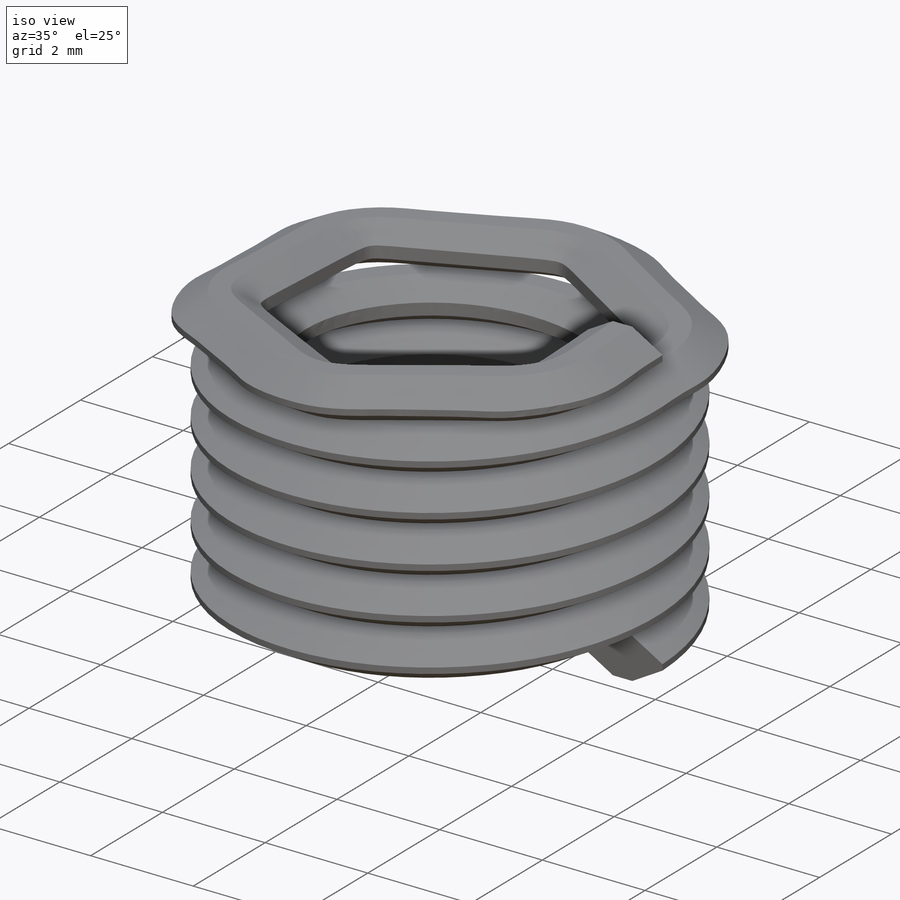
[diagram: iso view]
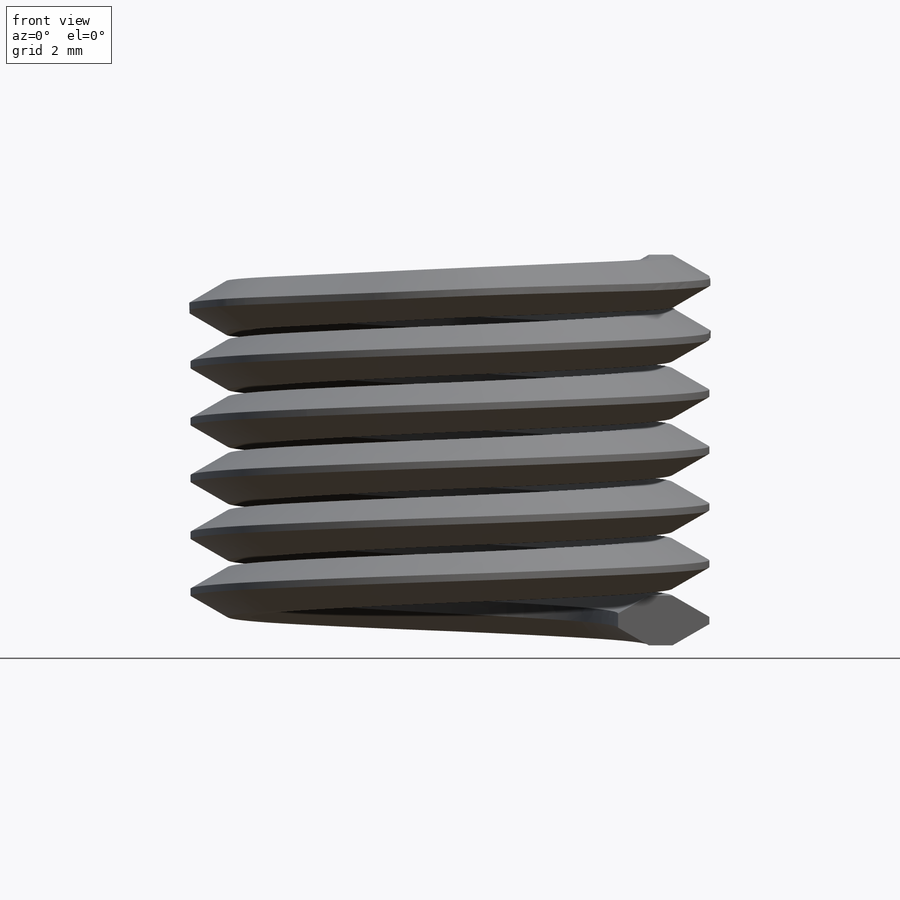
[diagram: front view]
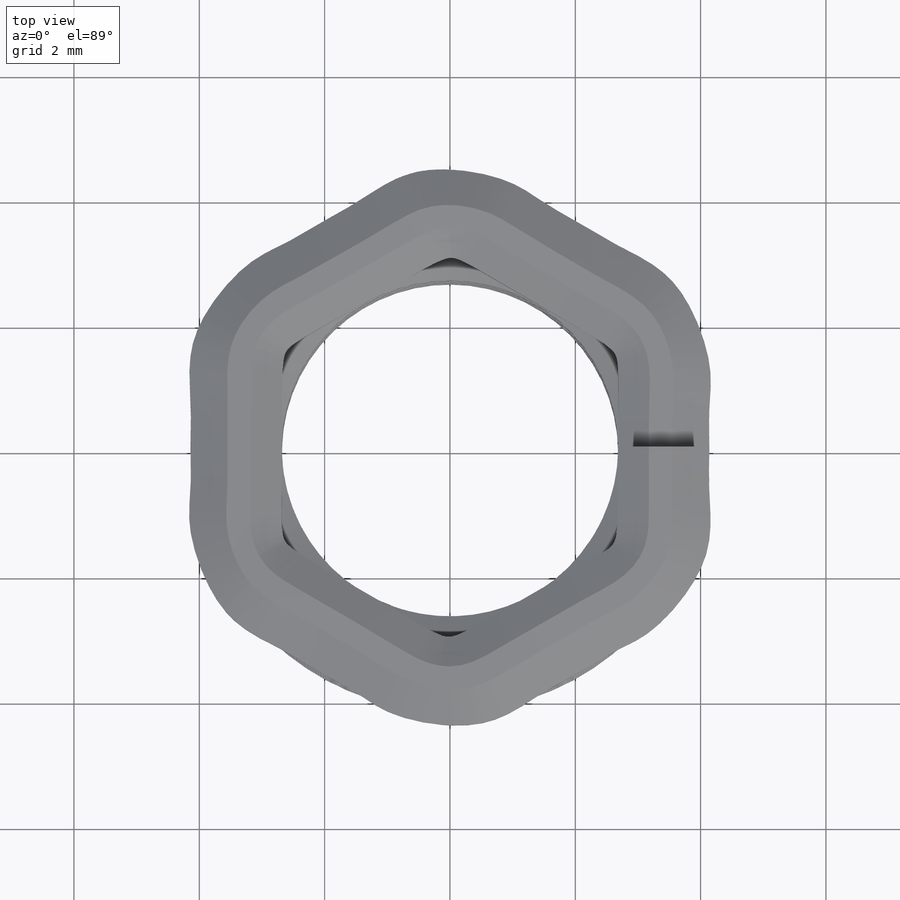
[diagram: top view]
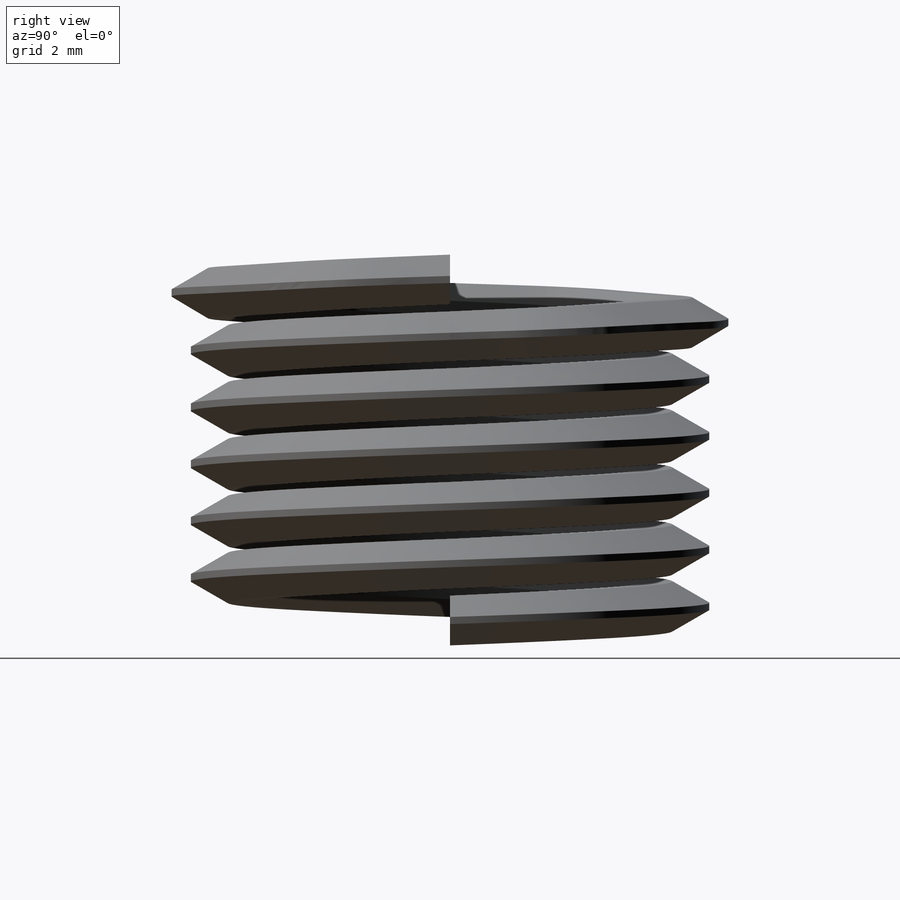
[diagram: right view]
SOLIDWORKS PART (.sldprt)
format: sldprt  version: not decoded by parser v0  size: 1,307,648 bytes
history: native  units: mm
features: sketch x15, plane x6, helix x3, sweep x2, material x1, revolve x1, extrude x1 (+14 scaffold rows collapsed)
feature tree (43):
  scaffold x14  (default folders/planes/origin — collapsed)
  material  "Material <not specified>"
  sketch  "Sketch1"  dims[c1.D1=~3.39841mm c1.D2=6.35mm c1.D3=~0.907143mm c1.D4=~0.056696mm c1.Installed Length=9.525mm c1.D5=6.35mm c1.D6=3.175mm c1.D7=6.35mm c2.D6=~3.037518mm c2.D7=60.0deg c2.Thread Size=6.35mm c2.Max OD=8.2804mm c2.D1=~0.056696mm c2.D2=~0.049101mm c2.D5=~0.107602mm c3.D2=~0.049101mm c3.D4=~0.056696mm c3.D1=~0.107602mm c4.D2=~0.107469mm c4.D4=~0.113393mm c4.D1=~0.294603mm c5.D1=120.0deg c5.Plane=~4.535714mm c5.D2=~0.824889mm c6.D2=60.0deg c7.D2=~0.824889mm c8.D2=60.0deg c9.D2=~0.687408mm c10.D2=120.0deg]
  sketch  "Sketch2"
  helix  "Helix/Spiral1"  Pitch=8.617857mm Height=8.617857mm
  sweep  "Sweep1"
  plane  "Plane1"
  sketch  "Sketch3"  dims[D1=0.0mm]
  helix  "Helix/Spiral2"  Pitch=0.907143mm
  sketch  "Sketch4"
  sweep  "Cut-Sweep1"
  sketch  "Sketch5"  dims[D1=0.0mm]
  sketch  "Sketch6"  dims[D1=0.0mm]
  sketch  "Sketch7"  dims[D1=0.0mm]
  helix  "Helix/Spiral3"  Pitch=0.907143mm
  sketch  "3DSketch1"  dims[c1.D1=~1.058333mm c2.D1=~0.247679mm c2.D3=~1.058333mm c3.D1=~1.058333mm c4.D1=~1.058333mm c4.D3=~0.03175mm c4.D2=~3.569948mm c5.D2=~120.055673deg]
  plane  "Plane2"
  sketch  "Sketch8"  dims[c1.D1=~0.746125mm c2.D1=60.0deg c3.D1=~0.184022mm c4.D1=60.0deg c5.D1=~0.55737mm c6.D1=60.0deg c6.D2=~0.743213mm c7.D2=60.0deg c7.D1=~0.907143mm c8.D2=~0.113393mm c8.D3=~1.099852mm c9.D3=60.0deg c10.D3=~0.417603mm]
  plane  "Plane3"
  sketch  "Sketch9"  dims[c1.D1=~0.907143mm c1.D2=~0.113393mm c1.D3=~0.883641mm c2.D3=60.0deg]
  plane  "Plane4"
  sketch  "Sketch10"  dims[D1=~0.907143mm D2=~0.113393mm]
  plane  "Plane5"
  sketch  "Sketch11"  dims[D1=~0.907143mm D2=~0.113393mm]
  plane  "Plane6"
  sketch  "Sketch12"  dims[D1=~0.907143mm D2=~0.113393mm]
  sketch  "Sketch13"  dims[D1=0.0mm]
  revolve  "Revolve1"  Angle=120deg
  sketch  "Sketch14"  dims[D1=0.0mm]
  extrude  "Boss-Extrude1"  Depth=3.81mm
decode coverage: 18 of 22 modeling features carry decoded parameters
note: ~ marks probable driven/reference dimensions
note: suppression state not decoded; provenance and decode notes live in map.json
